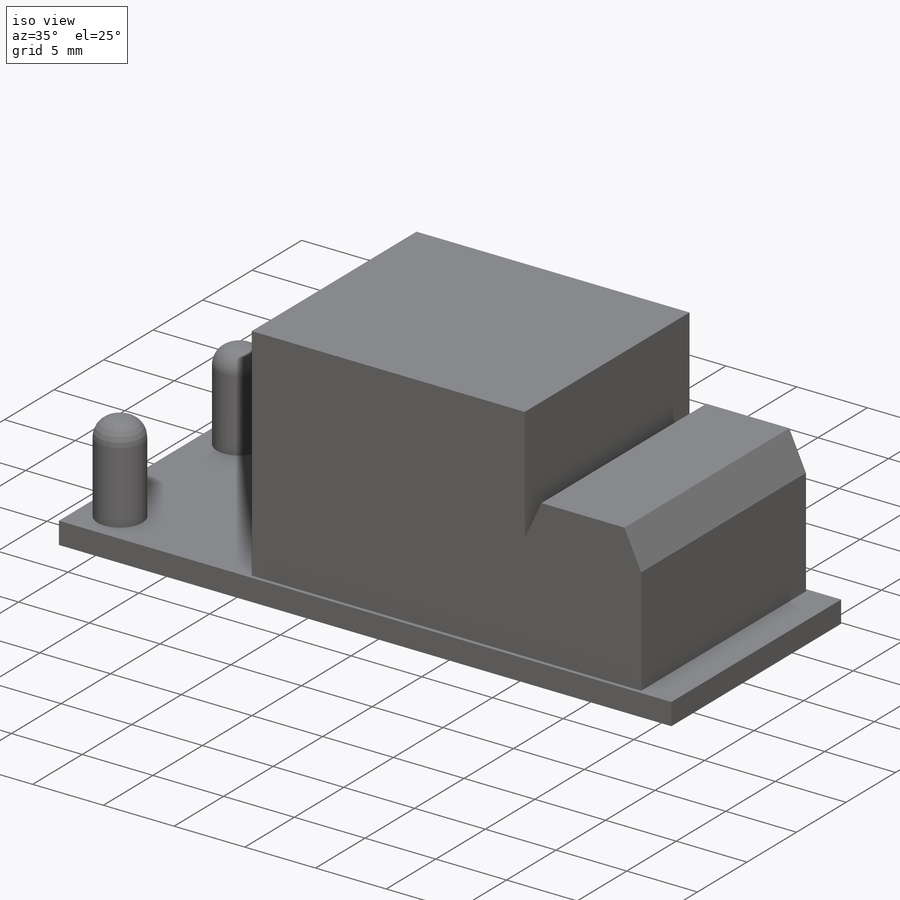
[diagram: iso view]
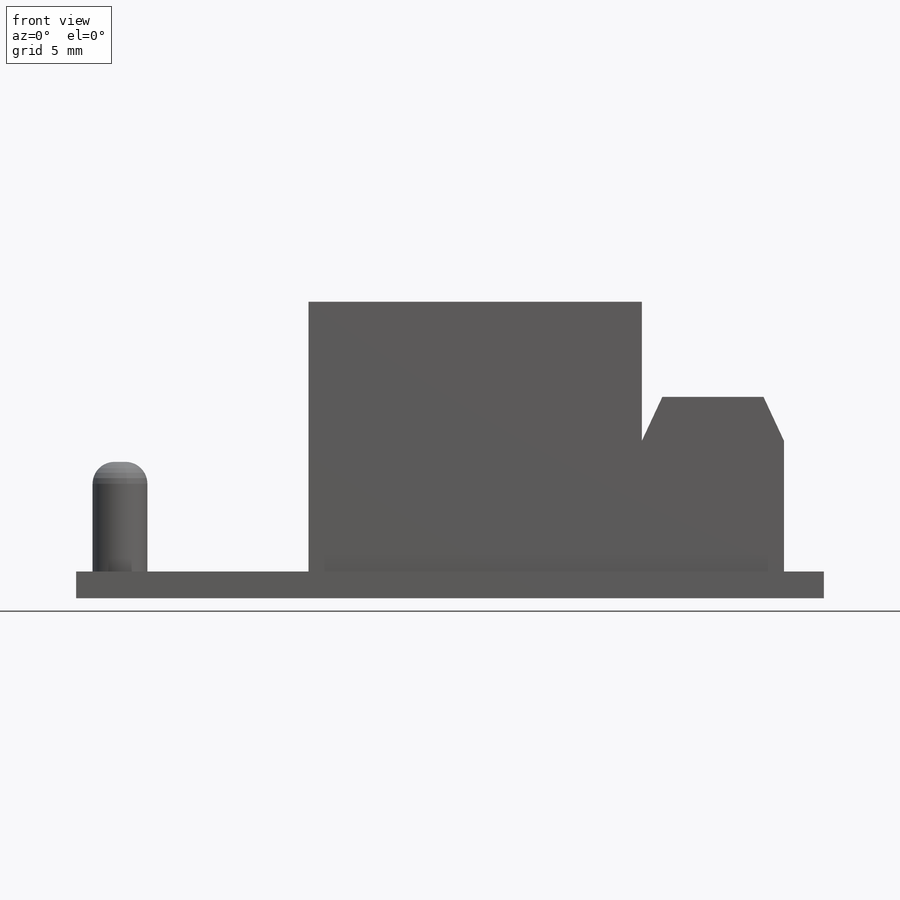
[diagram: front view]
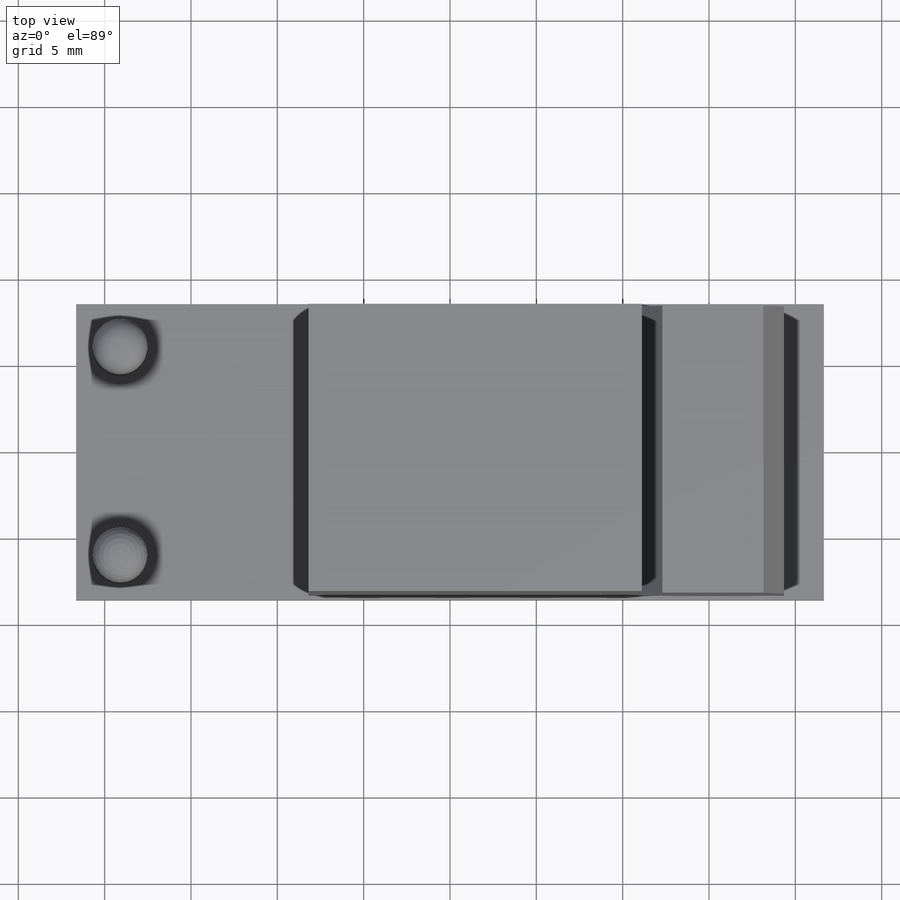
[diagram: top view]
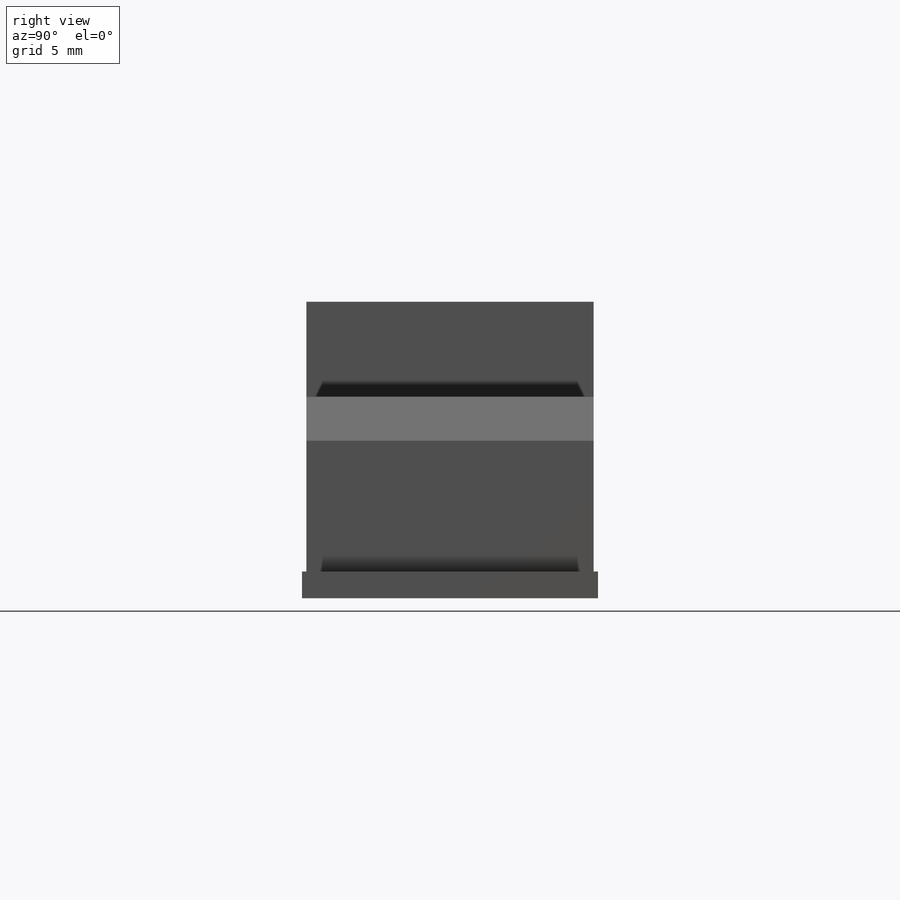
[diagram: right view]
SOLIDWORKS PART (.sldprt)
format: sldprt  version: not decoded by parser v0  size: 244,224 bytes
history: native  units: mm
features: sketch x5, extrude x5, fillet x2, material x1, chamfer x1 (+13 scaffold rows collapsed)
feature tree (27):
  scaffold x13  (default folders/planes/origin — collapsed)
  material  "Material <not specified>"
  sketch  "Sketch1"  dims[D1=17.145mm D2=43.307mm]
  extrude  "Boss-Extrude1"  Depth=1.5494mm
  sketch  "Sketch2"  dims[D1=0.254mm D2=0.254mm D3=10.541mm D4=13.462mm]
  extrude  "Boss-Extrude2"  Depth=15.621mm
  sketch  "Sketch3"  dims[D1=0.254mm D2=8.2296mm]
  extrude  "Boss-Extrude3"  Depth=10.1092mm
  chamfer  "Chamfer1"  Distance=2.54mm Angle=25deg
  sketch  "Sketch4"  dims[c1.D1=3.175mm c1.D2=3.175mm c1.D3=2.54mm c1.D4=2.54mm c1.D5=~3.183525mm c2.D4=2.54mm c2.D5=2.54mm c2.D6=2.54mm]
  extrude  "Boss-Extrude4"  Depth=6.35mm
  fillet  "Fillet2"  Radius=1.27mm
  sketch  "Sketch5"
  extrude  "Boss-Extrude5"  Depth=6.35mm
  fillet  "Fillet1"  Radius=1.27mm
decode coverage: 12 of 13 modeling features carry decoded parameters
note: ~ marks probable driven/reference dimensions
note: suppression state not decoded; provenance and decode notes live in map.json
